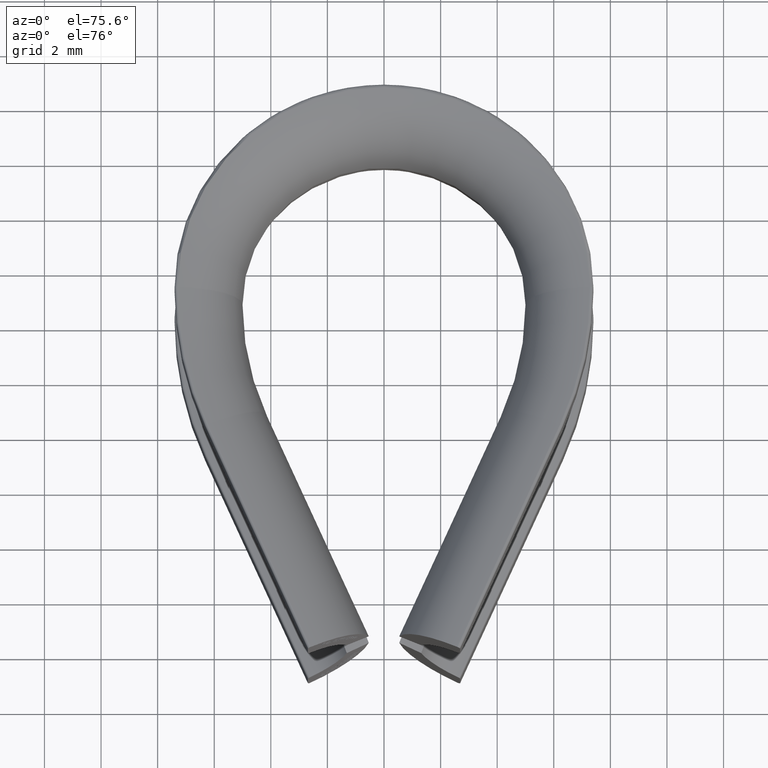
[diagram: clean part render]
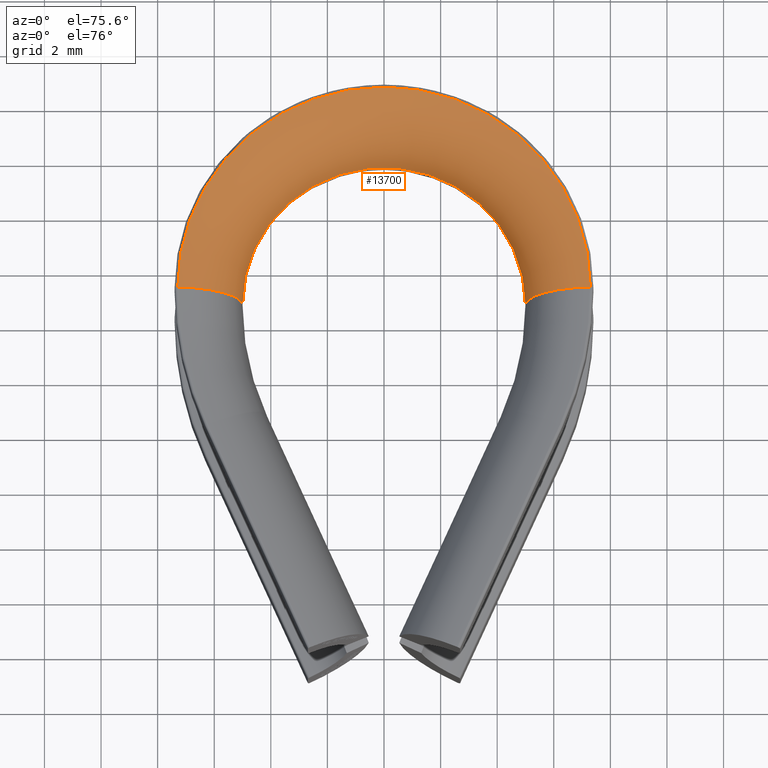
[diagram: same view with one face highlighted and labeled with its STEP entity id]
A machine part, auxiliary view. The second image highlights one B-rep face of the part: STEP entity #13700.
In plain terms, the highlighted toroidal blend (fillet) surface has major radius 7.55 mm and minor (blend) radius 2.55 mm.
Its self-contained STEP definition (entity closure, byte-faithful):
#133 = VERTEX_POINT ( 'NONE', #898 ) ;
#166 = CIRCLE ( 'NONE', #2997, 2.550000000000000300 ) ;
#898 = CARTESIAN_POINT ( 'NONE',  ( -7.289795918368159100, 12.19999999999999900, 2.536689542672213400 ) ) ;
#952 = ORIENTED_EDGE ( 'NONE', *, *, #5431, .T. ) ;
#1322 = AXIS2_PLACEMENT_3D ( 'NONE', #11286, #8831, #1557 ) ;
#1443 = CIRCLE ( 'NONE', #3499, 7.289795918367326900 ) ;
#1557 = DIRECTION ( 'NONE',  ( 0.0000000000000000000, 0.0000000000000000000, -1.000000000000000000 ) ) ;
#1741 = DIRECTION ( 'NONE',  ( -1.608122649676636600E-016, 1.000000000000000000, -0.0000000000000000000 ) ) ;
#2230 = VERTEX_POINT ( 'NONE', #6175 ) ;
#2997 = AXIS2_PLACEMENT_3D ( 'NONE', #8808, #1741, #8863 ) ;
#3215 = CARTESIAN_POINT ( 'NONE',  ( 0.0000000000000000000, 12.19999999999999900, -3.122849337825750900E-016 ) ) ;
#3499 = AXIS2_PLACEMENT_3D ( 'NONE', #9905, #14817, #13569 ) ;
#4447 = DIRECTION ( 'NONE',  ( 0.0000000000000000000, 0.0000000000000000000, 1.000000000000000000 ) ) ;
#4538 = EDGE_CURVE ( 'NONE', #133, #2230, #166, .T. ) ;
#4717 = EDGE_CURVE ( 'NONE', #11007, #2230, #10968, .T. ) ;
#4973 = AXIS2_PLACEMENT_3D ( 'NONE', #14146, #13105, #15411 ) ;
#5129 = VERTEX_POINT ( 'NONE', #8670 ) ;
#5431 = EDGE_CURVE ( 'NONE', #5129, #133, #1443, .T. ) ;
#5593 = CARTESIAN_POINT ( 'NONE',  ( 5.000000000000000900, 12.19999999999999900, 3.122849337825750900E-016 ) ) ;
#5650 = DIRECTION ( 'NONE',  ( 1.000000000000000000, 0.0000000000000000000, 0.0000000000000000000 ) ) ;
#6175 = CARTESIAN_POINT ( 'NONE',  ( -5.000000000000000900, 12.19999999999999900, -3.122849337825750900E-016 ) ) ;
#7584 = AXIS2_PLACEMENT_3D ( 'NONE', #3215, #4447, #5650 ) ;
#8670 = CARTESIAN_POINT ( 'NONE',  ( 7.289795918368159100, 12.19999999999999900, 2.536689542672213400 ) ) ;
#8808 = CARTESIAN_POINT ( 'NONE',  ( -7.550000000000000700, 12.19999999999999900, 0.0000000000000000000 ) ) ;
#8831 = DIRECTION ( 'NONE',  ( -1.608122649676636600E-016, -1.000000000000000000, 0.0000000000000000000 ) ) ;
#8863 = DIRECTION ( 'NONE',  ( 0.0000000000000000000, 0.0000000000000000000, -1.000000000000000000 ) ) ;
#9438 = ORIENTED_EDGE ( 'NONE', *, *, #4538, .T. ) ;
#9905 = CARTESIAN_POINT ( 'NONE',  ( 0.0000000000000000000, 12.19999999999999900, 2.536689542672213400 ) ) ;
#10968 = CIRCLE ( 'NONE', #7584, 5.000000000000000900 ) ;
#11007 = VERTEX_POINT ( 'NONE', #5593 ) ;
#11286 = CARTESIAN_POINT ( 'NONE',  ( 7.550000000000000700, 12.19999999999999900, 0.0000000000000000000 ) ) ;
#11578 = ORIENTED_EDGE ( 'NONE', *, *, #15656, .F. ) ;
#12478 = EDGE_LOOP ( 'NONE', ( #13290, #11578, #952, #9438 ) ) ;
#13105 = DIRECTION ( 'NONE',  ( 0.0000000000000000000, 0.0000000000000000000, 1.000000000000000000 ) ) ;
#13290 = ORIENTED_EDGE ( 'NONE', *, *, #4717, .F. ) ;
#13569 = DIRECTION ( 'NONE',  ( -1.000000000000000000, 0.0000000000000000000, 0.0000000000000000000 ) ) ;
#13700 = ADVANCED_FACE ( 'NONE', ( #15487 ), #13960, .T. ) ;
#13960 = TOROIDAL_SURFACE ( 'NONE', #4973, 7.550000000000000700, 2.550000000000000300 ) ;
#14146 = CARTESIAN_POINT ( 'NONE',  ( 0.0000000000000000000, 12.19999999999999900, 0.0000000000000000000 ) ) ;
#14817 = DIRECTION ( 'NONE',  ( 0.0000000000000000000, 0.0000000000000000000, 1.000000000000000000 ) ) ;
#15411 = DIRECTION ( 'NONE',  ( 1.000000000000000000, 0.0000000000000000000, 0.0000000000000000000 ) ) ;
#15444 = CIRCLE ( 'NONE', #1322, 2.550000000000000300 ) ;
#15487 = FACE_OUTER_BOUND ( 'NONE', #12478, .T. ) ;
#15656 = EDGE_CURVE ( 'NONE', #5129, #11007, #15444, .T. ) ;